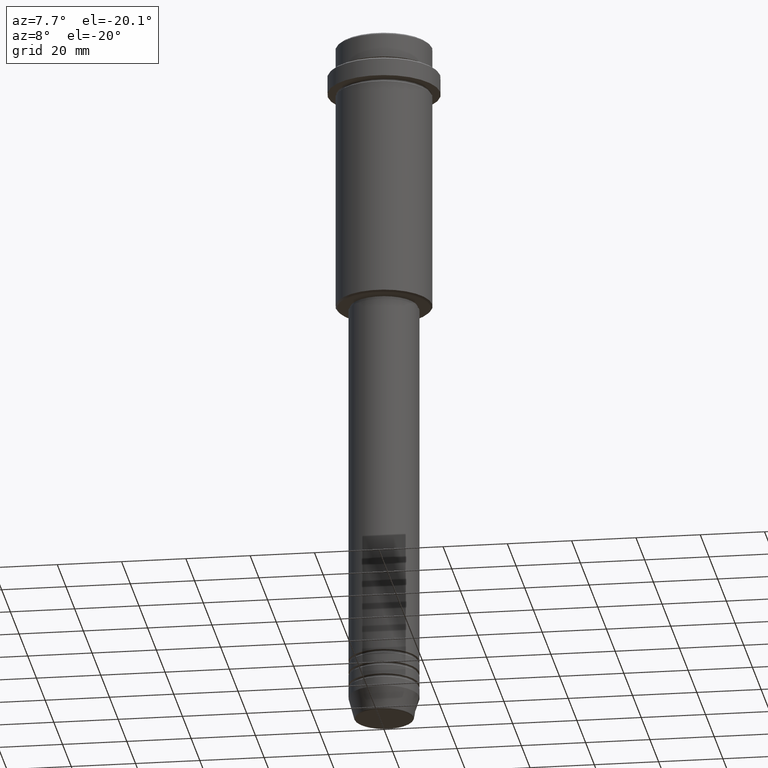
[diagram: clean part render]
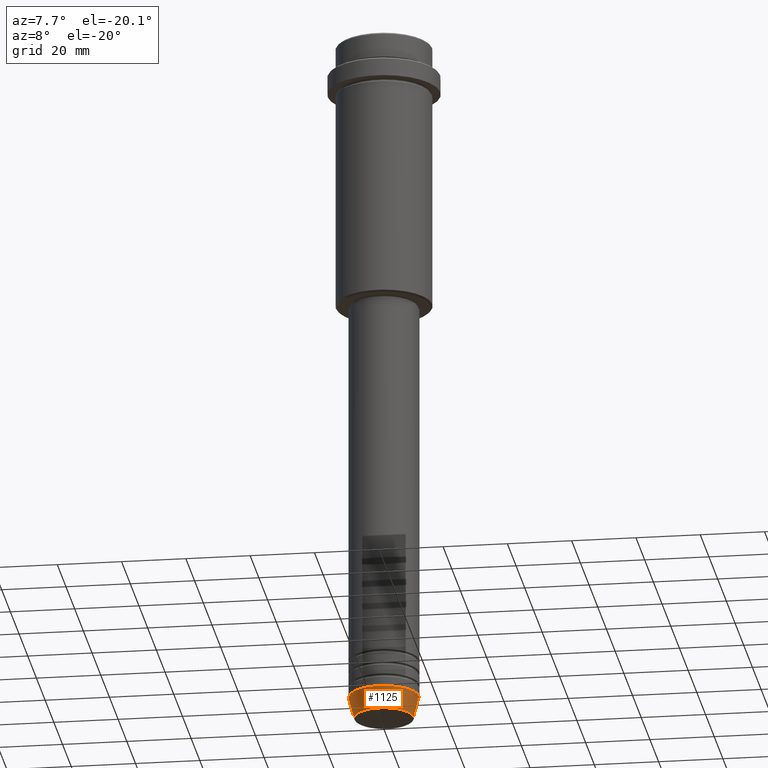
[diagram: same view with one face highlighted and labeled with its STEP entity id]
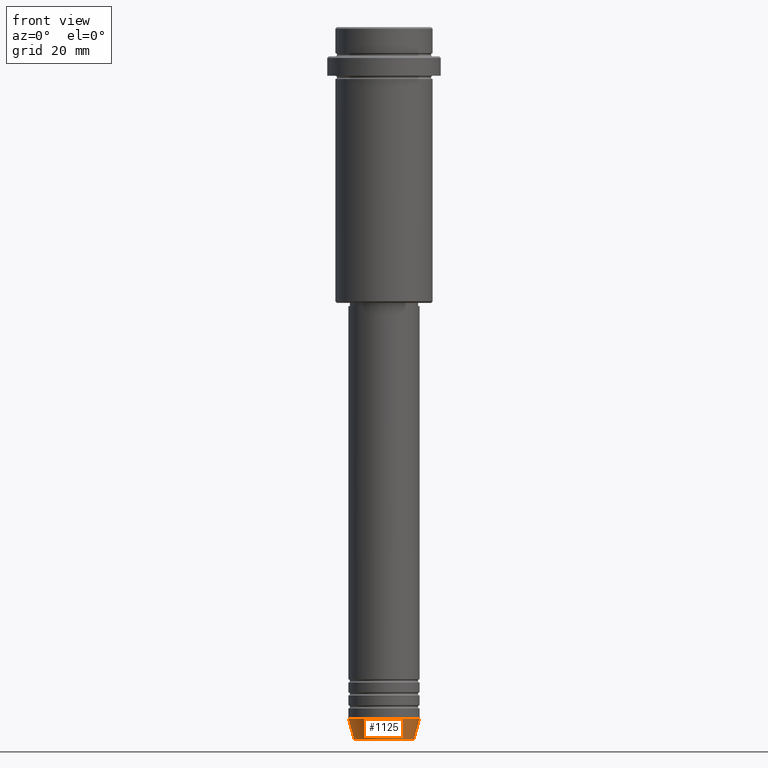
[diagram: same view with one face highlighted and labeled with its STEP entity id]
A machine part, auxiliary view. The second image highlights one B-rep face of the part: STEP entity #1125.
A second angle (front view) of the same face is appended — the face is thin or edge-on in the first view.
In plain terms, the highlighted conical surface has half-angle 15 deg.
Its self-contained STEP definition (entity closure, byte-faithful):
#24 = EDGE_LOOP ( 'NONE', ( #643, #426, #909, #223 ) ) ;
#35 = CARTESIAN_POINT ( 'NONE',  ( -11.00000000000000000, 1.347111479062088405E-15, -213.0000000000000284 ) ) ;
#52 = DIRECTION ( 'NONE',  ( -0.000000000000000000, -0.000000000000000000, 1.000000000000000000 ) ) ;
#60 = EDGE_CURVE ( 'NONE', #478, #1283, #933, .T. ) ;
#74 = CARTESIAN_POINT ( 'NONE',  ( 0.000000000000000000, 0.000000000000000000, -213.0000000000000284 ) ) ;
#80 = DIRECTION ( 'NONE',  ( -0.000000000000000000, -0.000000000000000000, 1.000000000000000000 ) ) ;
#136 = VERTEX_POINT ( 'NONE', #410 ) ;
#142 = EDGE_CURVE ( 'NONE', #478, #136, #431, .T. ) ;
#158 = CARTESIAN_POINT ( 'NONE',  ( 11.00000000000000000, 0.000000000000000000, -213.0000000000000284 ) ) ;
#192 = CARTESIAN_POINT ( 'NONE',  ( 0.000000000000000000, 0.000000000000000000, -219.6294095225512706 ) ) ;
#223 = ORIENTED_EDGE ( 'NONE', *, *, #1134, .F. ) ;
#291 = DIRECTION ( 'NONE',  ( -0.000000000000000000, -0.000000000000000000, 1.000000000000000000 ) ) ;
#307 = CIRCLE ( 'NONE', #957, 11.00000000000000000 ) ;
#380 = EDGE_CURVE ( 'NONE', #136, #1139, #681, .T. ) ;
#401 = DIRECTION ( 'NONE',  ( -0.2588190451025213501, 3.169619151431772337E-17, 0.9659258262890680902 ) ) ;
#410 = CARTESIAN_POINT ( 'NONE',  ( 9.223655072137189492, 0.000000000000000000, -219.6294095225512706 ) ) ;
#426 = ORIENTED_EDGE ( 'NONE', *, *, #142, .T. ) ;
#431 = CIRCLE ( 'NONE', #1292, 9.223655072137189492 ) ;
#478 = VERTEX_POINT ( 'NONE', #640 ) ;
#498 = CARTESIAN_POINT ( 'NONE',  ( 11.00000000000000000, 0.000000000000000000, -213.0000000000000284 ) ) ;
#505 = DIRECTION ( 'NONE',  ( 1.000000000000000000, 0.000000000000000000, 0.000000000000000000 ) ) ;
#640 = CARTESIAN_POINT ( 'NONE',  ( -9.223655072137189492, 1.238341722557647202E-15, -219.6294095225512706 ) ) ;
#643 = ORIENTED_EDGE ( 'NONE', *, *, #60, .F. ) ;
#681 = LINE ( 'NONE', #498, #751 ) ;
#725 = FACE_OUTER_BOUND ( 'NONE', #24, .T. ) ;
#751 = VECTOR ( 'NONE', #1157, 1000.000000000000000 ) ;
#797 = VECTOR ( 'NONE', #401, 1000.000000000000000 ) ;
#909 = ORIENTED_EDGE ( 'NONE', *, *, #380, .T. ) ;
#933 = LINE ( 'NONE', #35, #797 ) ;
#943 = CARTESIAN_POINT ( 'NONE',  ( 0.000000000000000000, 0.000000000000000000, -213.0000000000000284 ) ) ;
#957 = AXIS2_PLACEMENT_3D ( 'NONE', #943, #52, #1138 ) ;
#969 = CARTESIAN_POINT ( 'NONE',  ( -11.00000000000000000, 1.347111479062088405E-15, -213.0000000000000284 ) ) ;
#1001 = AXIS2_PLACEMENT_3D ( 'NONE', #74, #291, #1017 ) ;
#1017 = DIRECTION ( 'NONE',  ( 1.000000000000000000, 0.000000000000000000, 0.000000000000000000 ) ) ;
#1125 = ADVANCED_FACE ( 'NONE', ( #725 ), #1183, .T. ) ;
#1134 = EDGE_CURVE ( 'NONE', #1283, #1139, #307, .T. ) ;
#1138 = DIRECTION ( 'NONE',  ( 1.000000000000000000, 0.000000000000000000, 0.000000000000000000 ) ) ;
#1139 = VERTEX_POINT ( 'NONE', #158 ) ;
#1157 = DIRECTION ( 'NONE',  ( 0.2588190451025213501, 0.000000000000000000, 0.9659258262890680902 ) ) ;
#1183 = CONICAL_SURFACE ( 'NONE', #1001, 11.00000000000000000, 0.2617993877991500740 ) ;
#1283 = VERTEX_POINT ( 'NONE', #969 ) ;
#1292 = AXIS2_PLACEMENT_3D ( 'NONE', #192, #80, #505 ) ;